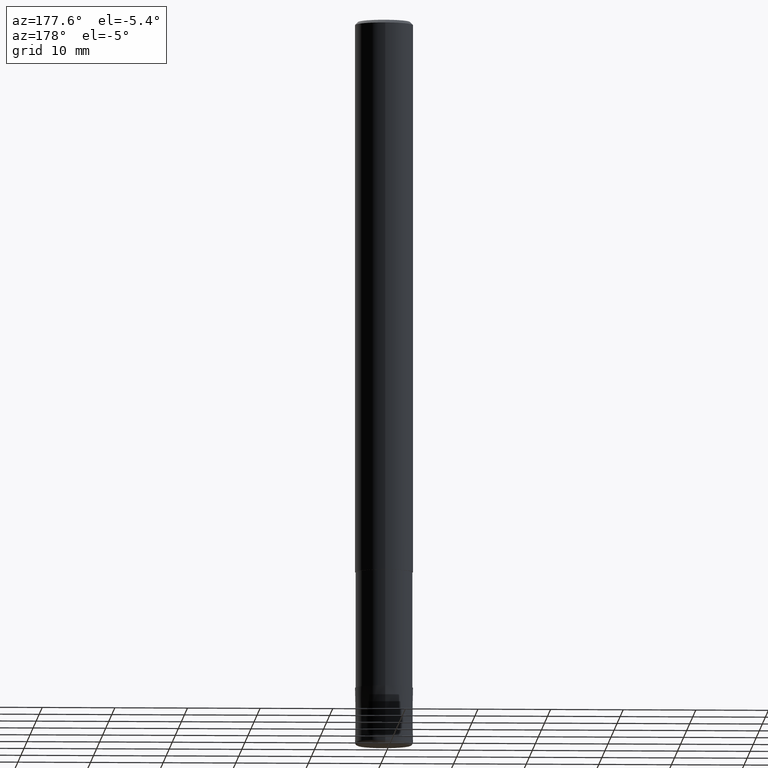
[diagram: clean part render]
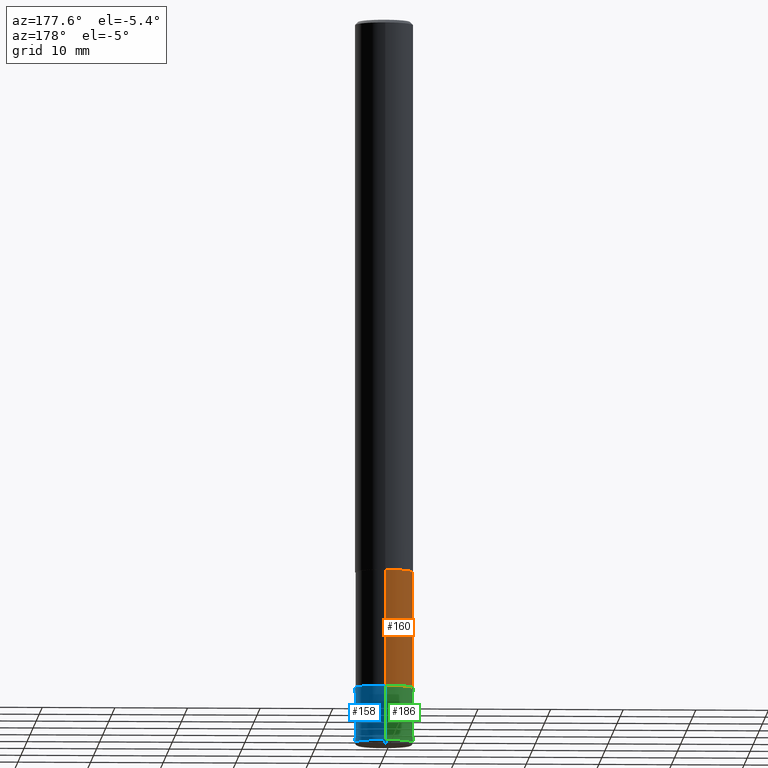
[diagram: same view with three faces highlighted in distinct colors, each labeled with its STEP entity id]
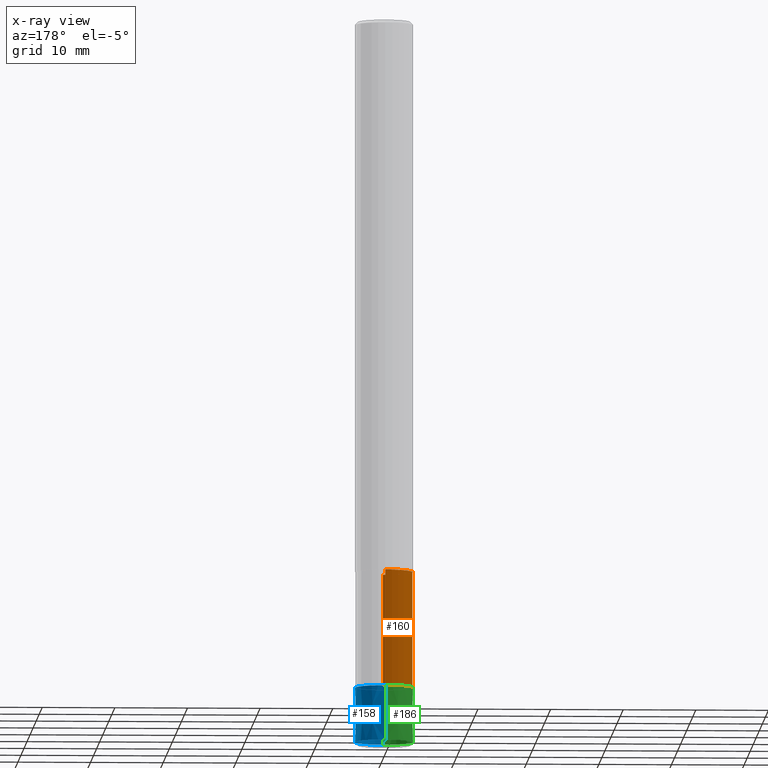
[diagram: x-ray of the same camera — body ghosted, the three highlighted faces saturated]
A machine part, auxiliary view with three faces highlighted in distinct colors.
The next image is the same camera in x-ray (body ghosted, the three faces saturated) — at least one of them is partly hidden behind the body in this view.
Their STEP definitions:

[orange] entity #160 — the highlighted cylindrical surface (edge-blend (fillet) strip) has radius 3.9099 mm, axis along (-0, -0, 1).
#132=EDGE_CURVE('',#202,#184,#275,.T.);
#146=VERTEX_POINT('',#293);
#154=VERTEX_POINT('',#302);
#160=ADVANCED_FACE('',(#309),#310,.T.);
#162=EDGE_CURVE('',#154,#202,#312,.T.);
#184=VERTEX_POINT('',#336);
#200=EDGE_CURVE('',#154,#146,#353,.T.);
#202=VERTEX_POINT('',#355);
#206=EDGE_CURVE('',#184,#146,#359,.T.);
#275=CIRCLE('',#432,3.90995);
#293=CARTESIAN_POINT('',(0.0,3.90995,-92.0));
#302=CARTESIAN_POINT('',(4.7881496131278E-016,-3.90995,-92.0));
#309=FACE_OUTER_BOUND('',#469,.T.);
#310=CYLINDRICAL_SURFACE('',#470,3.90995);
#312=LINE('',#473,#474);
#336=CARTESIAN_POINT('',(0.0,3.90995,-76.0));
#353=CIRCLE('',#526,3.90995);
#355=CARTESIAN_POINT('',(4.7881496131278E-016,-3.90995,-76.0));
#359=LINE('',#533,#534);
#432=AXIS2_PLACEMENT_3D('',#611,#612,#613);
#469=EDGE_LOOP('',(#661,#662,#663,#664));
#470=AXIS2_PLACEMENT_3D('',#665,#666,#667);
#473=CARTESIAN_POINT('',(4.7881496131278E-016,-3.90995,-84.0));
#474=VECTOR('',#668,1.0);
#526=AXIS2_PLACEMENT_3D('',#711,#712,#713);
#533=CARTESIAN_POINT('',(-4.7881496131278E-016,3.90995,-84.0));
#534=VECTOR('',#714,1.0);
#611=CARTESIAN_POINT('',(0.0,0.0,-76.0));
#612=DIRECTION('',(0.0,0.0,-1.0));
#613=DIRECTION('',(0.0,1.0,0.0));
#661=ORIENTED_EDGE('',*,*,#206,.T.);
#662=ORIENTED_EDGE('',*,*,#200,.F.);
#663=ORIENTED_EDGE('',*,*,#162,.T.);
#664=ORIENTED_EDGE('',*,*,#132,.T.);
#665=CARTESIAN_POINT('',(0.0,0.0,-84.0));
#666=DIRECTION('',(-0.0,-0.0,1.0));
#667=DIRECTION('',(0.0,1.0,0.0));
#668=DIRECTION('',(-0.0,-0.0,1.0));
#711=CARTESIAN_POINT('',(0.0,0.0,-92.0));
#712=DIRECTION('',(0.0,0.0,-1.0));
#713=DIRECTION('',(0.0,1.0,0.0));
#714=DIRECTION('',(0.0,0.0,-1.0));

[blue] entity #158 — the highlighted conical surface has half-angle 0.001 deg.
#104=EDGE_CURVE('',#172,#204,#242,.T.);
#150=VERTEX_POINT('',#298);
#152=VERTEX_POINT('',#300);
#156=EDGE_CURVE('',#152,#150,#304,.T.);
#158=ADVANCED_FACE('',(#306),#307,.T.);
#168=EDGE_CURVE('',#152,#204,#318,.T.);
#172=VERTEX_POINT('',#322);
#198=EDGE_CURVE('',#150,#172,#351,.T.);
#204=VERTEX_POINT('',#357);
#242=LINE('',#392,#393);
#298=CARTESIAN_POINT('',(0.0,4.0,-99.5));
#300=CARTESIAN_POINT('',(0.0,3.9999,-92.0));
#304=LINE('',#463,#464);
#306=FACE_OUTER_BOUND('',#466,.T.);
#307=CONICAL_SURFACE('',#467,3.99995,1.33333333325713E-005);
#318=CIRCLE('',#483,3.9999);
#322=CARTESIAN_POINT('',(4.89842541528951E-016,-4.0,-99.5));
#351=CIRCLE('',#523,4.0);
#357=CARTESIAN_POINT('',(4.89830295465413E-016,-3.9999,-92.0));
#392=CARTESIAN_POINT('',(4.89836418497182E-016,-3.99995,-95.75));
#393=VECTOR('',#560,1.0);
#463=CARTESIAN_POINT('',(-4.89836418497182E-016,3.99995,-95.75));
#464=VECTOR('',#651,1.0);
#466=EDGE_LOOP('',(#653,#654,#655,#656));
#467=AXIS2_PLACEMENT_3D('',#657,#658,#659);
#483=AXIS2_PLACEMENT_3D('',#675,#676,#677);
#523=AXIS2_PLACEMENT_3D('',#708,#709,#710);
#560=DIRECTION('',(-1.63280847162148E-021,1.33333333321763E-005,0.999999999911111));
#651=DIRECTION('',(-1.63280847162148E-021,1.33333333321763E-005,-0.999999999911111));
#653=ORIENTED_EDGE('',*,*,#156,.F.);
#654=ORIENTED_EDGE('',*,*,#168,.T.);
#655=ORIENTED_EDGE('',*,*,#104,.F.);
#656=ORIENTED_EDGE('',*,*,#198,.F.);
#657=CARTESIAN_POINT('',(0.0,0.0,-95.75));
#658=DIRECTION('',(0.0,-0.0,-1.0));
#659=DIRECTION('',(0.0,1.0,0.0));
#675=CARTESIAN_POINT('',(0.0,0.0,-92.0));
#676=DIRECTION('',(0.0,0.0,-1.0));
#677=DIRECTION('',(0.0,1.0,0.0));
#708=CARTESIAN_POINT('',(0.0,0.0,-99.5));
#709=DIRECTION('',(0.0,0.0,-1.0));
#710=DIRECTION('',(0.0,1.0,0.0));

[green] entity #186 — the highlighted conical surface has half-angle 0.001 deg.
#104=EDGE_CURVE('',#172,#204,#242,.T.);
#116=EDGE_CURVE('',#204,#152,#258,.T.);
#138=EDGE_CURVE('',#172,#150,#282,.T.);
#150=VERTEX_POINT('',#298);
#152=VERTEX_POINT('',#300);
#156=EDGE_CURVE('',#152,#150,#304,.T.);
#172=VERTEX_POINT('',#322);
#186=ADVANCED_FACE('',(#338),#339,.T.);
#204=VERTEX_POINT('',#357);
#242=LINE('',#392,#393);
#258=CIRCLE('',#411,3.9999);
#282=CIRCLE('',#441,4.0);
#298=CARTESIAN_POINT('',(0.0,4.0,-99.5));
#300=CARTESIAN_POINT('',(0.0,3.9999,-92.0));
#304=LINE('',#463,#464);
#322=CARTESIAN_POINT('',(4.89842541528951E-016,-4.0,-99.5));
#338=FACE_OUTER_BOUND('',#506,.T.);
#339=CONICAL_SURFACE('',#507,3.99995,1.33333333325713E-005);
#357=CARTESIAN_POINT('',(4.89830295465413E-016,-3.9999,-92.0));
#392=CARTESIAN_POINT('',(4.89836418497182E-016,-3.99995,-95.75));
#393=VECTOR('',#560,1.0);
#411=AXIS2_PLACEMENT_3D('',#592,#593,#594);
#441=AXIS2_PLACEMENT_3D('',#623,#624,#625);
#463=CARTESIAN_POINT('',(-4.89836418497182E-016,3.99995,-95.75));
#464=VECTOR('',#651,1.0);
#506=EDGE_LOOP('',(#697,#698,#699,#700));
#507=AXIS2_PLACEMENT_3D('',#701,#702,#703);
#560=DIRECTION('',(-1.63280847162148E-021,1.33333333321763E-005,0.999999999911111));
#592=CARTESIAN_POINT('',(0.0,0.0,-92.0));
#593=DIRECTION('',(0.0,0.0,-1.0));
#594=DIRECTION('',(0.0,1.0,0.0));
#623=CARTESIAN_POINT('',(0.0,0.0,-99.5));
#624=DIRECTION('',(0.0,0.0,-1.0));
#625=DIRECTION('',(0.0,1.0,0.0));
#651=DIRECTION('',(-1.63280847162148E-021,1.33333333321763E-005,-0.999999999911111));
#697=ORIENTED_EDGE('',*,*,#156,.T.);
#698=ORIENTED_EDGE('',*,*,#138,.F.);
#699=ORIENTED_EDGE('',*,*,#104,.T.);
#700=ORIENTED_EDGE('',*,*,#116,.T.);
#701=CARTESIAN_POINT('',(0.0,0.0,-95.75));
#702=DIRECTION('',(0.0,-0.0,-1.0));
#703=DIRECTION('',(0.0,1.0,0.0));